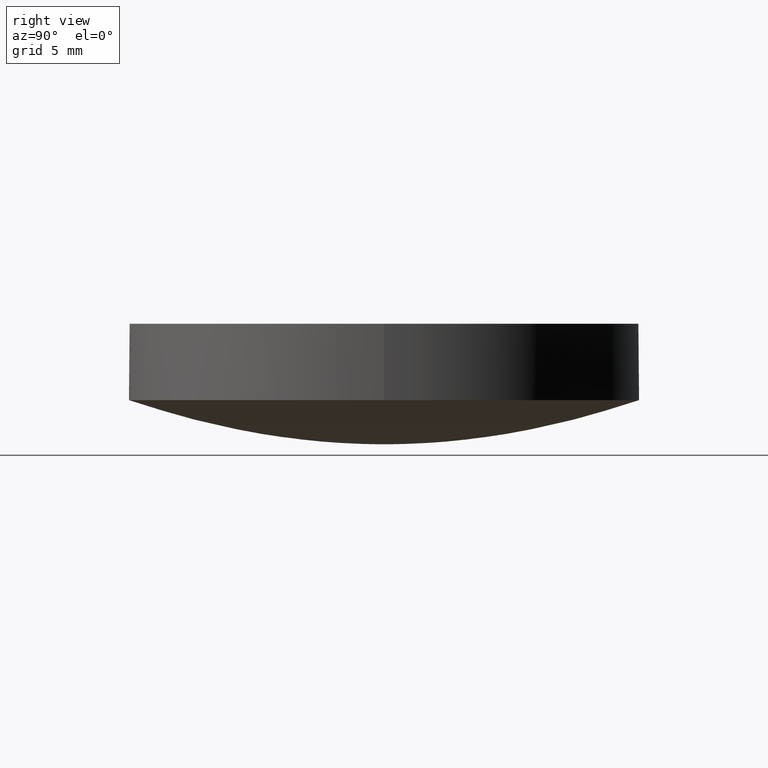
[diagram: clean part render]
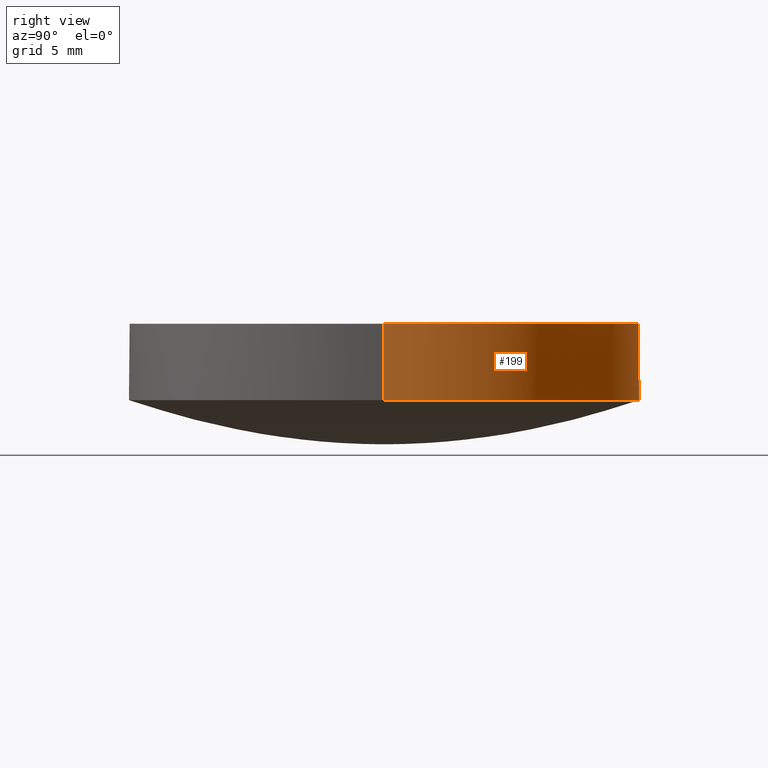
[diagram: same view with one face highlighted and labeled with its STEP entity id]
A machine part, right view. The second image highlights one B-rep face of the part: STEP entity #199.
In plain terms, the highlighted cylindrical surface (partial cylindrical patch) has radius 12.7 mm, axis along (0, 0, 1).
Its self-contained STEP definition (entity closure, byte-faithful):
#10 = CYLINDRICAL_SURFACE ( 'NONE', #484, 12.69999999999999929 ) ;
#17 = DIRECTION ( 'NONE',  ( -1.000000000000000000, 0.000000000000000000, 0.000000000000000000 ) ) ;
#25 = DIRECTION ( 'NONE',  ( -1.000000000000000000, 0.000000000000000000, 0.000000000000000000 ) ) ;
#27 = DIRECTION ( 'NONE',  ( -0.000000000000000000, -0.000000000000000000, -1.000000000000000000 ) ) ;
#44 = VERTEX_POINT ( 'NONE', #263 ) ;
#53 = CARTESIAN_POINT ( 'NONE',  ( 12.70000000000000107, -8.881784197001250351E-16, 2.197451818612039087 ) ) ;
#61 = ORIENTED_EDGE ( 'NONE', *, *, #424, .F. ) ;
#62 = DIRECTION ( 'NONE',  ( 6.993530863780509846E-17, 4.890947394265059749E-33, 1.000000000000000000 ) ) ;
#91 = CARTESIAN_POINT ( 'NONE',  ( -3.851859888774471706E-31, 12.70000000000000284, 2.197451818612039975 ) ) ;
#100 = DIRECTION ( 'NONE',  ( -6.993530863780509846E-17, -4.890947394265059749E-33, -1.000000000000000000 ) ) ;
#115 = ORIENTED_EDGE ( 'NONE', *, *, #407, .T. ) ;
#120 = VECTOR ( 'NONE', #389, 1000.000000000000000 ) ;
#138 = CARTESIAN_POINT ( 'NONE',  ( 1.154110800375616501E-15, -8.881784197001250351E-16, 5.999999999999999112 ) ) ;
#143 = DIRECTION ( 'NONE',  ( -0.000000000000000000, -0.000000000000000000, -1.000000000000000000 ) ) ;
#146 = LINE ( 'NONE', #53, #120 ) ;
#157 = VERTEX_POINT ( 'NONE', #350 ) ;
#171 = DIRECTION ( 'NONE',  ( 1.000000000000000000, 0.000000000000000000, -6.829619984160658046E-17 ) ) ;
#182 = VECTOR ( 'NONE', #62, 1000.000000000000000 ) ;
#199 = ADVANCED_FACE ( 'NONE', ( #423 ), #10, .T. ) ;
#207 = CIRCLE ( 'NONE', #482, 12.70000000000000284 ) ;
#216 = VERTEX_POINT ( 'NONE', #503 ) ;
#227 = VERTEX_POINT ( 'NONE', #357 ) ;
#232 = EDGE_CURVE ( 'NONE', #216, #372, #387, .T. ) ;
#238 = EDGE_CURVE ( 'NONE', #372, #44, #207, .T. ) ;
#252 = EDGE_LOOP ( 'NONE', ( #328, #115, #312, #61, #306 ) ) ;
#263 = CARTESIAN_POINT ( 'NONE',  ( 12.70000000000000462, -8.881784197001248379E-16, 2.197451818612039975 ) ) ;
#267 = LINE ( 'NONE', #438, #182 ) ;
#271 = DIRECTION ( 'NONE',  ( 1.000000000000000000, 0.000000000000000000, -6.829619984160658046E-17 ) ) ;
#275 = EDGE_CURVE ( 'NONE', #157, #227, #294, .T. ) ;
#294 = CIRCLE ( 'NONE', #533, 12.69999999999999929 ) ;
#306 = ORIENTED_EDGE ( 'NONE', *, *, #238, .F. ) ;
#312 = ORIENTED_EDGE ( 'NONE', *, *, #275, .T. ) ;
#328 = ORIENTED_EDGE ( 'NONE', *, *, #232, .F. ) ;
#347 = CARTESIAN_POINT ( 'NONE',  ( 8.881784197001250351E-16, -8.881784197001250351E-16, 2.197451818612039975 ) ) ;
#350 = CARTESIAN_POINT ( 'NONE',  ( -12.69999999999999751, 6.671230152170134961E-16, 6.000000000000000000 ) ) ;
#357 = CARTESIAN_POINT ( 'NONE',  ( 12.70000000000000107, -8.881784197001250351E-16, 5.999999999999998224 ) ) ;
#372 = VERTEX_POINT ( 'NONE', #91 ) ;
#387 = CIRCLE ( 'NONE', #458, 12.70000000000000284 ) ;
#389 = DIRECTION ( 'NONE',  ( 6.993530863780509846E-17, 4.890947394265059749E-33, 1.000000000000000000 ) ) ;
#399 = CARTESIAN_POINT ( 'NONE',  ( 1.734723475976807094E-15, -1.345898117247522881E-15, 2.197451818612039975 ) ) ;
#407 = EDGE_CURVE ( 'NONE', #216, #157, #267, .T. ) ;
#423 = FACE_OUTER_BOUND ( 'NONE', #252, .T. ) ;
#424 = EDGE_CURVE ( 'NONE', #44, #227, #146, .T. ) ;
#438 = CARTESIAN_POINT ( 'NONE',  ( -12.69999999999999751, 6.671230152170134961E-16, 2.197451818612040864 ) ) ;
#458 = AXIS2_PLACEMENT_3D ( 'NONE', #479, #143, #25 ) ;
#479 = CARTESIAN_POINT ( 'NONE',  ( 1.734723475976807094E-15, -1.345898117247522881E-15, 2.197451818612039975 ) ) ;
#482 = AXIS2_PLACEMENT_3D ( 'NONE', #399, #27, #17 ) ;
#484 = AXIS2_PLACEMENT_3D ( 'NONE', #347, #516, #171 ) ;
#503 = CARTESIAN_POINT ( 'NONE',  ( -12.70000000000000107, 6.671230152170136933E-16, 2.197451818612039975 ) ) ;
#516 = DIRECTION ( 'NONE',  ( 6.993530863780509846E-17, 4.890947394265059749E-33, 1.000000000000000000 ) ) ;
#533 = AXIS2_PLACEMENT_3D ( 'NONE', #138, #100, #271 ) ;